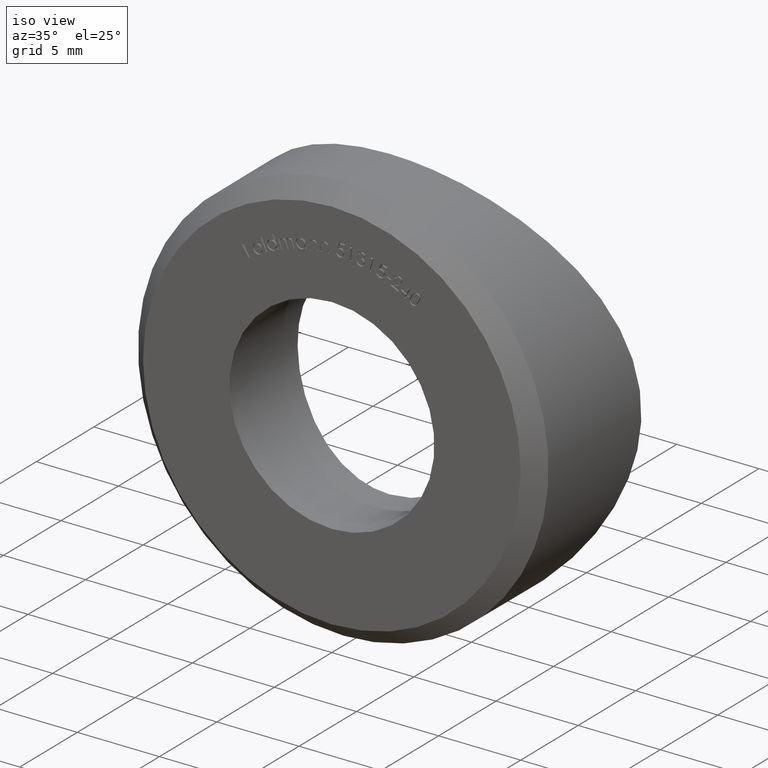
[diagram: clean part render]
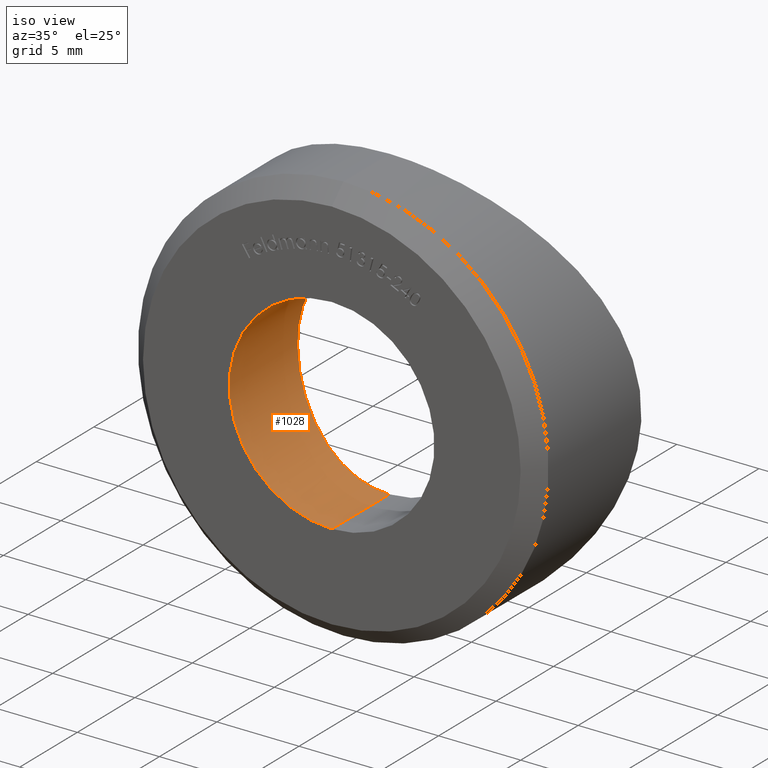
[diagram: same view with one face highlighted and labeled with its STEP entity id]
A machine part, iso view. The second image highlights one B-rep face of the part: STEP entity #1028.
In plain terms, the highlighted cylindrical surface (partial cylindrical patch) has radius 6.25 mm, axis along (-0, -1, -0).
Its self-contained STEP definition (entity closure, byte-faithful):
#138 = CARTESIAN_POINT ( 'NONE',  ( 0.000000000000000000, 0.000000000000000000, -6.250000000000000000 ) ) ;
#308 = CARTESIAN_POINT ( 'NONE',  ( -4.701322905638709138, 5.527428506139909103, 4.123302519195069848 ) ) ;
#352 = CARTESIAN_POINT ( 'NONE',  ( -5.422976845275784719, 5.703978974697994531, -3.134116042011554359 ) ) ;
#424 = EDGE_LOOP ( 'NONE', ( #2858, #5784, #6759, #1776 ) ) ;
#436 = CARTESIAN_POINT ( 'NONE',  ( -6.089482261121212936, 5.893351839599424657, -1.422256779302053076 ) ) ;
#476 = CARTESIAN_POINT ( 'NONE',  ( -3.138434974276989475, 5.230777001362731937, -5.420254390151170831 ) ) ;
#559 = CARTESIAN_POINT ( 'NONE',  ( -2.027153255933492826, 5.093734079927321190, -5.926192729194687203 ) ) ;
#1028 = ADVANCED_FACE ( 'NONE', ( #2149 ), #3045, .F. ) ;
#1171 = VERTEX_POINT ( 'NONE', #138 ) ;
#1213 = VECTOR ( 'NONE', #1835, 1000.000000000000000 ) ;
#1309 = CARTESIAN_POINT ( 'NONE',  ( -0.4092686838256206494, 5.000000000000000888, 6.250000000000000888 ) ) ;
#1353 = CARTESIAN_POINT ( 'NONE',  ( -5.929191836853933140, 5.845349175092729332, 2.019275300083381186 ) ) ;
#1393 = CARTESIAN_POINT ( 'NONE',  ( -2.780710919132648229, 5.179736961777106075, -5.612197196358858164 ) ) ;
#1641 = LINE ( 'NONE', #6492, #1213 ) ;
#1776 = ORIENTED_EDGE ( 'NONE', *, *, #3269, .F. ) ;
#1835 = DIRECTION ( 'NONE',  ( -0.000000000000000000, -1.000000000000000000, -0.000000000000000000 ) ) ;
#2149 = FACE_OUTER_BOUND ( 'NONE', #424, .T. ) ;
#2151 = AXIS2_PLACEMENT_3D ( 'NONE', #9195, #9470, #6562 ) ;
#2217 = CARTESIAN_POINT ( 'NONE',  ( -4.965941128128314119, 5.588474475527460683, -3.817170410284975723 ) ) ;
#2306 = CARTESIAN_POINT ( 'NONE',  ( -4.707645724980052293, 5.527220639172252703, -4.130946839769426226 ) ) ;
#2346 = CARTESIAN_POINT ( 'NONE',  ( -6.039009894633546871, 5.878231471475243275, -1.623375360818818613 ) ) ;
#2389 = CARTESIAN_POINT ( 'NONE',  ( -1.628116089997181604, 5.058774128726690300, -6.048128515370918556 ) ) ;
#2858 = ORIENTED_EDGE ( 'NONE', *, *, #5695, .F. ) ;
#3045 = CYLINDRICAL_SURFACE ( 'NONE', #5624, 6.250000000000000000 ) ;
#3269 = EDGE_CURVE ( 'NONE', #8936, #1171, #1641, .T. ) ;
#3300 = CARTESIAN_POINT ( 'NONE',  ( -6.198711123288858538, 5.926459655144054040, 0.8252140529028872962 ) ) ;
#3633 = CARTESIAN_POINT ( 'NONE',  ( 0.000000000000000000, 5.000000000000000888, -6.250000000000000000 ) ) ;
#4250 = VERTEX_POINT ( 'NONE', #9580 ) ;
#4264 = CARTESIAN_POINT ( 'NONE',  ( -6.250042709256491413, 5.942236892132672921, -0.4113155026955044868 ) ) ;
#4842 = CARTESIAN_POINT ( 'NONE',  ( 7.654042494670957606E-16, 10.00000000000000000, 6.250000000000000000 ) ) ;
#5024 = CARTESIAN_POINT ( 'NONE',  ( -6.249978594911349994, 5.942217111350757364, 0.2066304448088331081 ) ) ;
#5111 = CARTESIAN_POINT ( 'NONE',  ( -5.612230343322690551, 5.755685469656810049, 2.781305295941137068 ) ) ;
#5624 = AXIS2_PLACEMENT_3D ( 'NONE', #8699, #6907, #9653 ) ;
#5695 = EDGE_CURVE ( 'NONE', #6501, #8936, #9809, .T. ) ;
#5784 = ORIENTED_EDGE ( 'NONE', *, *, #10644, .T. ) ;
#5802 = VECTOR ( 'NONE', #6711, 1000.000000000000000 ) ;
#5916 = CARTESIAN_POINT ( 'NONE',  ( -5.080992854234317235, 5.617555197294912261, 3.645145832089327076 ) ) ;
#6014 = CARTESIAN_POINT ( 'NONE',  ( -2.775111326701122927, 5.178998879579903125, 5.614949000145119662 ) ) ;
#6096 = CARTESIAN_POINT ( 'NONE',  ( -3.646910745505149265, 5.315327059589729508, -5.079778533533580998 ) ) ;
#6131 = CARTESIAN_POINT ( 'NONE',  ( 0.000000000000000000, 5.000000000000000888, -6.250000000000000000 ) ) ;
#6492 = CARTESIAN_POINT ( 'NONE',  ( 0.000000000000000000, 10.00000000000000000, -6.250000000000000000 ) ) ;
#6501 = VERTEX_POINT ( 'NONE', #8023 ) ;
#6562 = DIRECTION ( 'NONE',  ( 0.000000000000000000, 0.000000000000000000, 1.000000000000000000 ) ) ;
#6711 = DIRECTION ( 'NONE',  ( -0.000000000000000000, -1.000000000000000000, -0.000000000000000000 ) ) ;
#6723 = CIRCLE ( 'NONE', #2151, 6.250000000000000000 ) ;
#6759 = ORIENTED_EDGE ( 'NONE', *, *, #10126, .F. ) ;
#6906 = CARTESIAN_POINT ( 'NONE',  ( -5.419219929815654702, 5.703021073411422392, 3.139882392734209660 ) ) ;
#6907 = DIRECTION ( 'NONE',  ( -0.000000000000000000, -1.000000000000000000, -0.000000000000000000 ) ) ;
#6950 = CARTESIAN_POINT ( 'NONE',  ( -4.562919216888543517, 5.496340930251538914, 4.275959394734244690 ) ) ;
#6995 = CARTESIAN_POINT ( 'NONE',  ( -3.140879071071910555, 5.231156144224305748, 5.418772609613530022 ) ) ;
#7042 = CARTESIAN_POINT ( 'NONE',  ( -1.630934952954241401, 5.058921487392958660, 6.047621632877017817 ) ) ;
#7164 = CARTESIAN_POINT ( 'NONE',  ( -0.8239995228952536888, 5.012191757310715978, -6.208997127332155586 ) ) ;
#7969 = CARTESIAN_POINT ( 'NONE',  ( -5.614953489184450142, 5.756450006703352607, -2.775068179418157754 ) ) ;
#8015 = CARTESIAN_POINT ( 'NONE',  ( -0.8195216734985297791, 5.011948326388072417, 6.209835783809110055 ) ) ;
#8023 = CARTESIAN_POINT ( 'NONE',  ( 7.653600344080003886E-16, 5.000000000000002665, 6.250000000000000000 ) ) ;
#8137 = CARTESIAN_POINT ( 'NONE',  ( -0.4153279907616377331, 5.000000000000001776, -6.250000000000000888 ) ) ;
#8699 = CARTESIAN_POINT ( 'NONE',  ( 0.000000000000000000, 10.00000000000000000, 0.000000000000000000 ) ) ;
#8871 = CARTESIAN_POINT ( 'NONE',  ( -4.130392474366833433, 5.404164343970034423, 4.708354288789354136 ) ) ;
#8918 = CARTESIAN_POINT ( 'NONE',  ( -3.817247833124795875, 5.343678345223391801, 4.965565115301524557 ) ) ;
#8936 = VERTEX_POINT ( 'NONE', #3633 ) ;
#9195 = CARTESIAN_POINT ( 'NONE',  ( 0.000000000000000000, 0.000000000000000000, 0.000000000000000000 ) ) ;
#9470 = DIRECTION ( 'NONE',  ( 0.000000000000000000, 1.000000000000000000, 0.000000000000000000 ) ) ;
#9580 = CARTESIAN_POINT ( 'NONE',  ( 7.654042494670957606E-16, 0.000000000000000000, 6.250000000000000000 ) ) ;
#9653 = DIRECTION ( 'NONE',  ( 0.000000000000000000, 0.000000000000000000, -1.000000000000000000 ) ) ;
#9772 = CARTESIAN_POINT ( 'NONE',  ( -6.209748737831648491, 5.929675989559553884, -0.8185076860484634675 ) ) ;
#9809 = B_SPLINE_CURVE_WITH_KNOTS ( 'NONE', 3,
 ( #10664, #1309, #8015, #7042, #10747, #6014, #6995, #8918, #8871, #6950, #308, #9897, #5916, #6906, #5111, #1353, #11716, #11624, #3300, #9859, #5024, #4264, #9772, #436, #2346, #10706, #10840, #7969, #352, #2217, #2306, #11668, #10794, #11757, #6096, #476, #1393, #559, #2389, #7164, #8137, #6131 ),
 .UNSPECIFIED., .F., .F.,
 ( 4, 2, 2, 2, 2, 2, 2, 2, 2, 2, 2, 2, 2, 2, 2, 2, 2, 2, 2, 2, 4 ),
 ( 0.01965012189004523846, 0.02087792266696679444, 0.02210572344388835042, 0.02333352422080990640, 0.02456132499773146238, 0.02517522538619224037, 0.02578912577465301836, 0.02701692655157458128, 0.02824472732849613726, 0.02885862771695692219, 0.02947252810541770018, 0.03070032888233925963, 0.03131422927080004109, 0.03192812965926081908, 0.03315593043618238200, 0.03438373121310394492, 0.03499763160156472985, 0.03561153199002550784, 0.03683933276694707076, 0.03806713354386863368, 0.03929493432079019660 ),
 .UNSPECIFIED. ) ;
#9859 = CARTESIAN_POINT ( 'NONE',  ( -6.239616636880951361, 5.939011822488883929, 0.4149482471970191710 ) ) ;
#9897 = CARTESIAN_POINT ( 'NONE',  ( -4.960034041242790792, 5.587971678130443820, 3.808165311222232674 ) ) ;
#10126 = EDGE_CURVE ( 'NONE', #1171, #4250, #6723, .T. ) ;
#10644 = EDGE_CURVE ( 'NONE', #6501, #4250, #10825, .T. ) ;
#10664 = CARTESIAN_POINT ( 'NONE',  ( 7.653600344080003886E-16, 5.000000000000002665, 6.250000000000000000 ) ) ;
#10706 = CARTESIAN_POINT ( 'NONE',  ( -5.918924777022713357, 5.842931298480920965, -2.017750617282064951 ) ) ;
#10747 = CARTESIAN_POINT ( 'NONE',  ( -2.021741972990386049, 5.093216958168713226, 5.928022819158551115 ) ) ;
#10794 = CARTESIAN_POINT ( 'NONE',  ( -4.127779092319995513, 5.405115993547406461, -4.697404861717709323 ) ) ;
#10825 = LINE ( 'NONE', #4842, #5802 ) ;
#10840 = CARTESIAN_POINT ( 'NONE',  ( -5.849642607631290403, 5.822848797819763611, -2.210369400013390884 ) ) ;
#11624 = CARTESIAN_POINT ( 'NONE',  ( -6.168284003584218134, 5.917149388603368365, 1.027845399775946911 ) ) ;
#11668 = CARTESIAN_POINT ( 'NONE',  ( -4.278095719262172025, 5.435623517423457507, -4.560858968775690414 ) ) ;
#11716 = CARTESIAN_POINT ( 'NONE',  ( -6.047920599764034399, 5.880805077184461993, 1.628475138835048686 ) ) ;
#11757 = CARTESIAN_POINT ( 'NONE',  ( -3.812452987417533912, 5.345001479368475472, -4.956750436386158754 ) ) ;